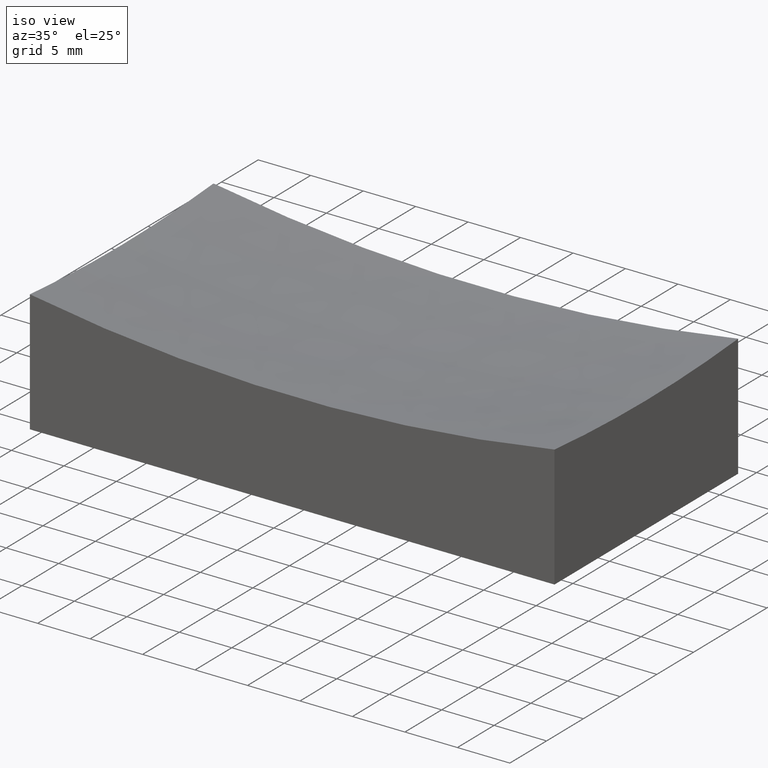
[diagram: clean part render]
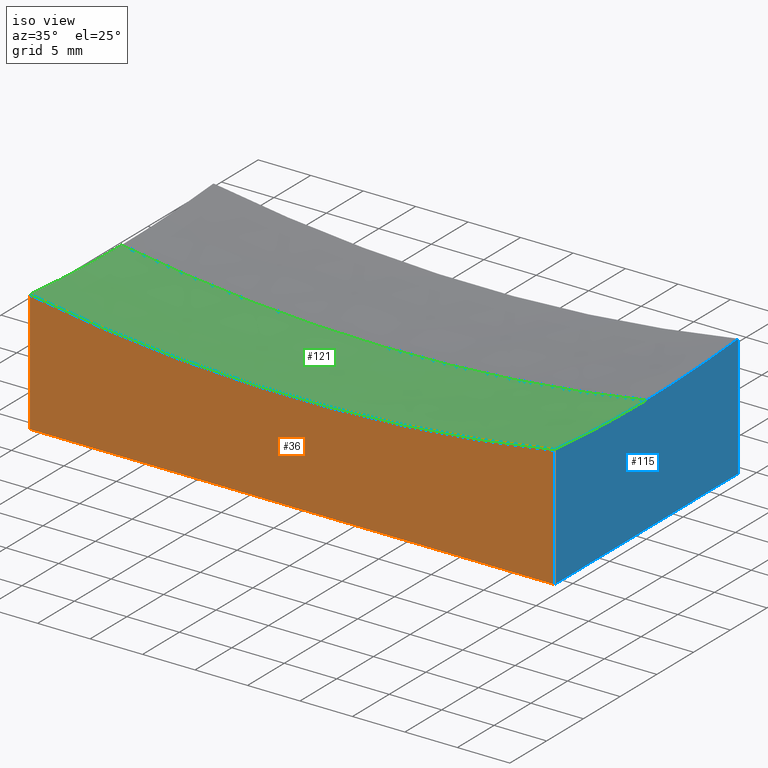
[diagram: same view with three faces highlighted in distinct colors, each labeled with its STEP entity id]
A machine part, iso view with three faces highlighted in distinct colors.
Their STEP definitions:

[orange] entity #36 — the highlighted planar face has unit normal (0, 1, 0).
#15 = AXIS2_PLACEMENT_3D ( 'NONE', #108, #209, #128 ) ;
#25 = VERTEX_POINT ( 'NONE', #206 ) ;
#26 = CARTESIAN_POINT ( 'NONE',  ( 24.99999999999999645, -12.50000000000000000, 15.00000000000000000 ) ) ;
#29 = CARTESIAN_POINT ( 'NONE',  ( 24.99999999999999645, -12.50000000000000000, 11.62717346810507379 ) ) ;
#31 = VERTEX_POINT ( 'NONE', #29 ) ;
#36 = ADVANCED_FACE ( 'NONE', ( #191 ), #111, .F. ) ;
#50 = DIRECTION ( 'NONE',  ( 0.000000000000000000, -0.000000000000000000, 1.000000000000000000 ) ) ;
#56 = DIRECTION ( 'NONE',  ( 1.000000000000000000, 0.000000000000000000, 0.000000000000000000 ) ) ;
#63 = ORIENTED_EDGE ( 'NONE', *, *, #86, .T. ) ;
#68 = EDGE_CURVE ( 'NONE', #226, #31, #127, .T. ) ;
#76 = ORIENTED_EDGE ( 'NONE', *, *, #246, .T. ) ;
#78 = EDGE_CURVE ( 'NONE', #31, #186, #168, .T. ) ;
#86 = EDGE_CURVE ( 'NONE', #226, #25, #222, .T. ) ;
#101 = LINE ( 'NONE', #156, #160 ) ;
#108 = CARTESIAN_POINT ( 'NONE',  ( 0.000000000000000000, -12.49999999999999645, 159.0000000000000000 ) ) ;
#111 = PLANE ( 'NONE',  #235 ) ;
#127 = CIRCLE ( 'NONE', #15, 149.4782592887674184 ) ;
#128 = DIRECTION ( 'NONE',  ( 4.440892098500626162E-15, 0.000000000000000000, 1.000000000000000000 ) ) ;
#131 = DIRECTION ( 'NONE',  ( 0.000000000000000000, 1.000000000000000000, 0.000000000000000000 ) ) ;
#148 = CARTESIAN_POINT ( 'NONE',  ( -24.99999999999999645, -12.50000000000000000, 15.00000000000000000 ) ) ;
#150 = CARTESIAN_POINT ( 'NONE',  ( 24.99999999999999645, -12.50000000000000000, 0.000000000000000000 ) ) ;
#156 = CARTESIAN_POINT ( 'NONE',  ( -24.99999999999999645, -12.50000000000000000, 0.000000000000000000 ) ) ;
#160 = VECTOR ( 'NONE', #56, 1000.000000000000000 ) ;
#166 = CARTESIAN_POINT ( 'NONE',  ( -24.99999999999999645, -12.50000000000000000, 15.00000000000000000 ) ) ;
#168 = LINE ( 'NONE', #26, #201 ) ;
#172 = DIRECTION ( 'NONE',  ( -0.000000000000000000, -0.000000000000000000, -1.000000000000000000 ) ) ;
#182 = ORIENTED_EDGE ( 'NONE', *, *, #68, .F. ) ;
#186 = VERTEX_POINT ( 'NONE', #150 ) ;
#188 = DIRECTION ( 'NONE',  ( -0.000000000000000000, -0.000000000000000000, -1.000000000000000000 ) ) ;
#191 = FACE_OUTER_BOUND ( 'NONE', #220, .T. ) ;
#193 = VECTOR ( 'NONE', #172, 1000.000000000000000 ) ;
#201 = VECTOR ( 'NONE', #188, 1000.000000000000000 ) ;
#206 = CARTESIAN_POINT ( 'NONE',  ( -24.99999999999999645, -12.50000000000000000, 0.000000000000000000 ) ) ;
#209 = DIRECTION ( 'NONE',  ( -0.000000000000000000, -1.000000000000000000, -0.000000000000000000 ) ) ;
#210 = ORIENTED_EDGE ( 'NONE', *, *, #78, .F. ) ;
#220 = EDGE_LOOP ( 'NONE', ( #182, #63, #76, #210 ) ) ;
#222 = LINE ( 'NONE', #166, #193 ) ;
#226 = VERTEX_POINT ( 'NONE', #252 ) ;
#235 = AXIS2_PLACEMENT_3D ( 'NONE', #148, #131, #50 ) ;
#246 = EDGE_CURVE ( 'NONE', #25, #186, #101, .T. ) ;
#252 = CARTESIAN_POINT ( 'NONE',  ( -24.99999999999998934, -12.49999999999999645, 11.62717346810510044 ) ) ;

[blue] entity #115 — the highlighted planar face has unit normal (-1, 0, 0).
#5 = DIRECTION ( 'NONE',  ( 1.000000000000000000, -2.775557561562891351E-16, -0.000000000000000000 ) ) ;
#8 = DIRECTION ( 'NONE',  ( -1.000000000000000000, 2.775557561562891351E-16, 0.000000000000000000 ) ) ;
#20 = CIRCLE ( 'NONE', #196, 147.9019945774903704 ) ;
#24 = VECTOR ( 'NONE', #233, 1000.000000000000000 ) ;
#26 = CARTESIAN_POINT ( 'NONE',  ( 24.99999999999999645, -12.50000000000000000, 15.00000000000000000 ) ) ;
#27 = VERTEX_POINT ( 'NONE', #95 ) ;
#29 = CARTESIAN_POINT ( 'NONE',  ( 24.99999999999999645, -12.50000000000000000, 11.62717346810507379 ) ) ;
#31 = VERTEX_POINT ( 'NONE', #29 ) ;
#40 = EDGE_CURVE ( 'NONE', #31, #122, #44, .T. ) ;
#44 = CIRCLE ( 'NONE', #104, 147.9019945774903704 ) ;
#46 = DIRECTION ( 'NONE',  ( 2.775557561562891351E-16, 1.000000000000000000, -0.000000000000000000 ) ) ;
#48 = CARTESIAN_POINT ( 'NONE',  ( 25.00000000000000000, -6.938893903907228378E-15, 159.0000000000000000 ) ) ;
#57 = VECTOR ( 'NONE', #46, 1000.000000000000000 ) ;
#61 = EDGE_CURVE ( 'NONE', #122, #223, #20, .T. ) ;
#67 = FACE_OUTER_BOUND ( 'NONE', #207, .T. ) ;
#72 = CARTESIAN_POINT ( 'NONE',  ( 25.00000000000000355, 12.50000000000000000, 0.000000000000000000 ) ) ;
#78 = EDGE_CURVE ( 'NONE', #31, #186, #168, .T. ) ;
#87 = ORIENTED_EDGE ( 'NONE', *, *, #61, .F. ) ;
#88 = ORIENTED_EDGE ( 'NONE', *, *, #133, .T. ) ;
#89 = DIRECTION ( 'NONE',  ( 1.000000000000000000, -2.775557561562891351E-16, -0.000000000000000000 ) ) ;
#95 = CARTESIAN_POINT ( 'NONE',  ( 25.00000000000000355, 12.50000000000000000, 0.000000000000000000 ) ) ;
#104 = AXIS2_PLACEMENT_3D ( 'NONE', #225, #5, #241 ) ;
#107 = ORIENTED_EDGE ( 'NONE', *, *, #213, .F. ) ;
#115 = ADVANCED_FACE ( 'NONE', ( #67 ), #243, .F. ) ;
#122 = VERTEX_POINT ( 'NONE', #130 ) ;
#130 = CARTESIAN_POINT ( 'NONE',  ( 25.00000000000000000, -3.851859888774471706E-31, 11.09800542250961897 ) ) ;
#133 = EDGE_CURVE ( 'NONE', #186, #27, #224, .T. ) ;
#134 = CARTESIAN_POINT ( 'NONE',  ( 25.00000000000000355, 12.50000000000000000, 15.00000000000000000 ) ) ;
#137 = LINE ( 'NONE', #229, #24 ) ;
#143 = DIRECTION ( 'NONE',  ( -2.814929138878541656E-16, -1.000000000000000000, 0.000000000000000000 ) ) ;
#150 = CARTESIAN_POINT ( 'NONE',  ( 24.99999999999999645, -12.50000000000000000, 0.000000000000000000 ) ) ;
#167 = ORIENTED_EDGE ( 'NONE', *, *, #40, .F. ) ;
#168 = LINE ( 'NONE', #26, #201 ) ;
#186 = VERTEX_POINT ( 'NONE', #150 ) ;
#188 = DIRECTION ( 'NONE',  ( -0.000000000000000000, -0.000000000000000000, -1.000000000000000000 ) ) ;
#194 = CARTESIAN_POINT ( 'NONE',  ( 25.00000000000000355, 12.50000000000000000, 11.62717346810510044 ) ) ;
#196 = AXIS2_PLACEMENT_3D ( 'NONE', #48, #89, #143 ) ;
#201 = VECTOR ( 'NONE', #188, 1000.000000000000000 ) ;
#207 = EDGE_LOOP ( 'NONE', ( #167, #240, #88, #107, #87 ) ) ;
#211 = DIRECTION ( 'NONE',  ( -2.775557561562891351E-16, -1.000000000000000000, 0.000000000000000000 ) ) ;
#213 = EDGE_CURVE ( 'NONE', #223, #27, #137, .T. ) ;
#223 = VERTEX_POINT ( 'NONE', #194 ) ;
#224 = LINE ( 'NONE', #72, #57 ) ;
#225 = CARTESIAN_POINT ( 'NONE',  ( 25.00000000000000000, -6.938893903907228378E-15, 159.0000000000000000 ) ) ;
#229 = CARTESIAN_POINT ( 'NONE',  ( 25.00000000000000355, 12.50000000000000000, 15.00000000000000000 ) ) ;
#233 = DIRECTION ( 'NONE',  ( -0.000000000000000000, -0.000000000000000000, -1.000000000000000000 ) ) ;
#238 = AXIS2_PLACEMENT_3D ( 'NONE', #134, #8, #211 ) ;
#240 = ORIENTED_EDGE ( 'NONE', *, *, #78, .T. ) ;
#241 = DIRECTION ( 'NONE',  ( -2.814929138878541656E-16, -1.000000000000000000, 0.000000000000000000 ) ) ;
#243 = PLANE ( 'NONE',  #238 ) ;

[green] entity #121 — the highlighted spherical surface has radius 150 mm.
#5 = DIRECTION ( 'NONE',  ( 1.000000000000000000, -2.775557561562891351E-16, -0.000000000000000000 ) ) ;
#11 = DIRECTION ( 'NONE',  ( 1.000000000000000000, 0.000000000000000000, 0.000000000000000000 ) ) ;
#14 = CARTESIAN_POINT ( 'NONE',  ( 0.000000000000000000, 0.000000000000000000, 159.0000000000000000 ) ) ;
#15 = AXIS2_PLACEMENT_3D ( 'NONE', #108, #209, #128 ) ;
#19 = AXIS2_PLACEMENT_3D ( 'NONE', #30, #75, #43 ) ;
#29 = CARTESIAN_POINT ( 'NONE',  ( 24.99999999999999645, -12.50000000000000000, 11.62717346810507379 ) ) ;
#30 = CARTESIAN_POINT ( 'NONE',  ( 0.000000000000000000, 0.000000000000000000, 159.0000000000000000 ) ) ;
#31 = VERTEX_POINT ( 'NONE', #29 ) ;
#40 = EDGE_CURVE ( 'NONE', #31, #122, #44, .T. ) ;
#43 = DIRECTION ( 'NONE',  ( 0.000000000000000000, 0.000000000000000000, 1.000000000000000000 ) ) ;
#44 = CIRCLE ( 'NONE', #104, 147.9019945774903704 ) ;
#45 = ORIENTED_EDGE ( 'NONE', *, *, #97, .T. ) ;
#55 = DIRECTION ( 'NONE',  ( 1.000000000000000000, 1.224646799147353207E-16, 0.000000000000000000 ) ) ;
#59 = AXIS2_PLACEMENT_3D ( 'NONE', #117, #157, #119 ) ;
#68 = EDGE_CURVE ( 'NONE', #226, #31, #127, .T. ) ;
#73 = EDGE_LOOP ( 'NONE', ( #189, #129, #173, #165, #45 ) ) ;
#75 = DIRECTION ( 'NONE',  ( 0.000000000000000000, 1.000000000000000000, -0.000000000000000000 ) ) ;
#90 = VERTEX_POINT ( 'NONE', #92 ) ;
#92 = CARTESIAN_POINT ( 'NONE',  ( -25.00000000000000000, -3.061616997868383043E-15, 11.09800542250961897 ) ) ;
#94 = CIRCLE ( 'NONE', #19, 149.9999999999999432 ) ;
#97 = EDGE_CURVE ( 'NONE', #122, #126, #94, .T. ) ;
#104 = AXIS2_PLACEMENT_3D ( 'NONE', #225, #5, #241 ) ;
#108 = CARTESIAN_POINT ( 'NONE',  ( 0.000000000000000000, -12.49999999999999645, 159.0000000000000000 ) ) ;
#117 = CARTESIAN_POINT ( 'NONE',  ( -25.00000000000000000, -3.469446951953614189E-15, 159.0000000000000000 ) ) ;
#119 = DIRECTION ( 'NONE',  ( -1.407464569439270828E-16, 1.000000000000000000, 0.000000000000000000 ) ) ;
#121 = ADVANCED_FACE ( 'NONE', ( #145 ), #184, .F. ) ;
#122 = VERTEX_POINT ( 'NONE', #130 ) ;
#126 = VERTEX_POINT ( 'NONE', #244 ) ;
#127 = CIRCLE ( 'NONE', #15, 149.4782592887674184 ) ;
#128 = DIRECTION ( 'NONE',  ( 4.440892098500626162E-15, 0.000000000000000000, 1.000000000000000000 ) ) ;
#129 = ORIENTED_EDGE ( 'NONE', *, *, #202, .T. ) ;
#130 = CARTESIAN_POINT ( 'NONE',  ( 25.00000000000000000, -3.851859888774471706E-31, 11.09800542250961897 ) ) ;
#145 = FACE_OUTER_BOUND ( 'NONE', #73, .T. ) ;
#151 = CARTESIAN_POINT ( 'NONE',  ( 0.000000000000000000, 0.000000000000000000, 159.0000000000000000 ) ) ;
#157 = DIRECTION ( 'NONE',  ( -1.000000000000000000, -1.387778780781445676E-16, 0.000000000000000000 ) ) ;
#165 = ORIENTED_EDGE ( 'NONE', *, *, #40, .T. ) ;
#169 = DIRECTION ( 'NONE',  ( 0.000000000000000000, -1.000000000000000000, -0.000000000000000000 ) ) ;
#173 = ORIENTED_EDGE ( 'NONE', *, *, #68, .T. ) ;
#174 = DIRECTION ( 'NONE',  ( 1.224646799147353207E-16, -1.000000000000000000, -3.185993688710303800E-35 ) ) ;
#175 = CIRCLE ( 'NONE', #250, 149.9999999999999716 ) ;
#184 = SPHERICAL_SURFACE ( 'NONE', #234, 149.9999999999999716 ) ;
#189 = ORIENTED_EDGE ( 'NONE', *, *, #230, .F. ) ;
#202 = EDGE_CURVE ( 'NONE', #90, #226, #214, .T. ) ;
#209 = DIRECTION ( 'NONE',  ( -0.000000000000000000, -1.000000000000000000, -0.000000000000000000 ) ) ;
#214 = CIRCLE ( 'NONE', #59, 147.9019945774903704 ) ;
#225 = CARTESIAN_POINT ( 'NONE',  ( 25.00000000000000000, -6.938893903907228378E-15, 159.0000000000000000 ) ) ;
#226 = VERTEX_POINT ( 'NONE', #252 ) ;
#230 = EDGE_CURVE ( 'NONE', #90, #126, #175, .T. ) ;
#234 = AXIS2_PLACEMENT_3D ( 'NONE', #151, #169, #11 ) ;
#241 = DIRECTION ( 'NONE',  ( -2.814929138878541656E-16, -1.000000000000000000, 0.000000000000000000 ) ) ;
#244 = CARTESIAN_POINT ( 'NONE',  ( 9.145827574474074517E-15, 0.000000000000000000, 9.000000000000035527 ) ) ;
#250 = AXIS2_PLACEMENT_3D ( 'NONE', #14, #174, #55 ) ;
#252 = CARTESIAN_POINT ( 'NONE',  ( -24.99999999999998934, -12.49999999999999645, 11.62717346810510044 ) ) ;